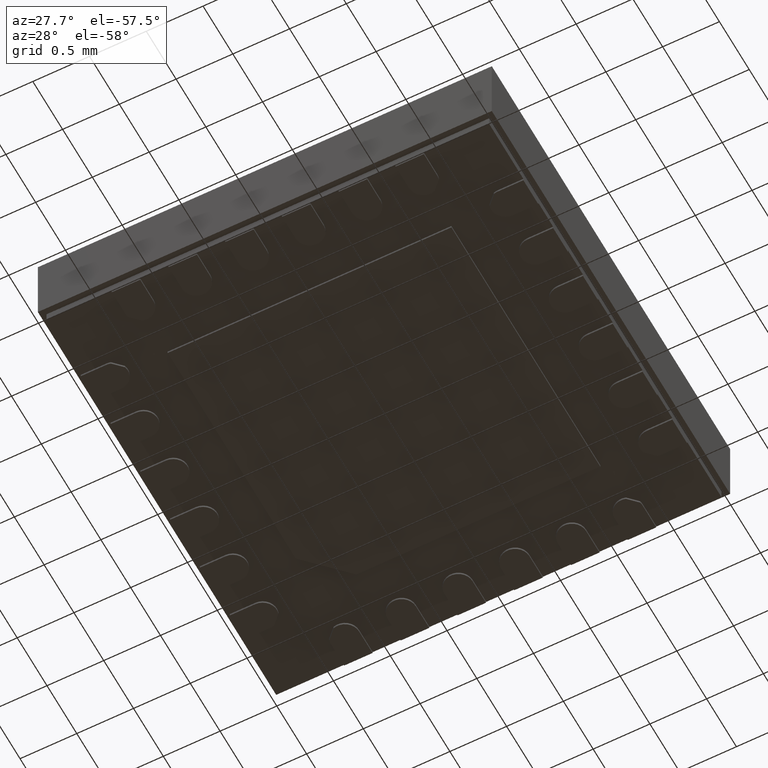
[diagram: clean part render]
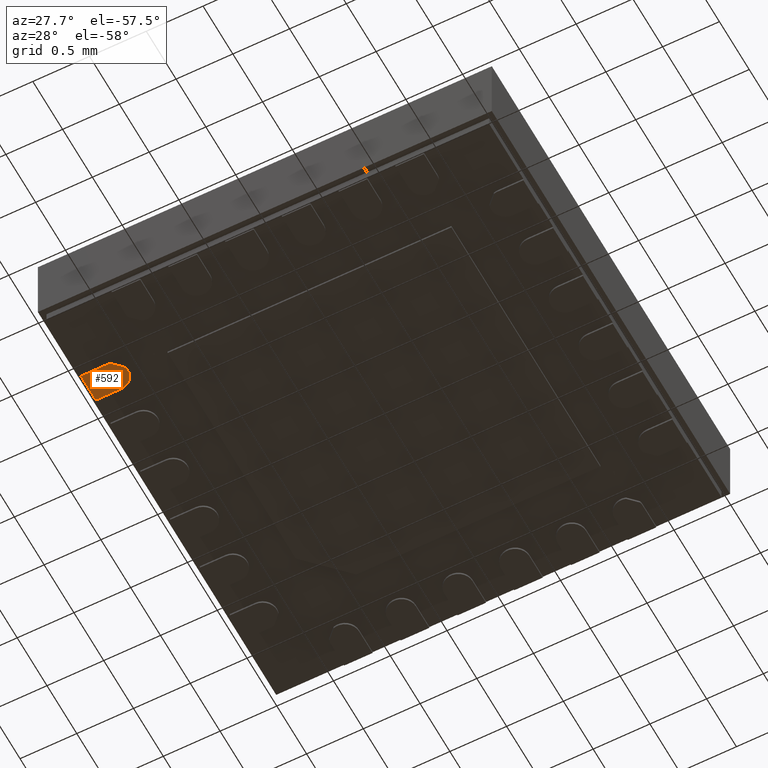
[diagram: same view with one face highlighted and labeled with its STEP entity id]
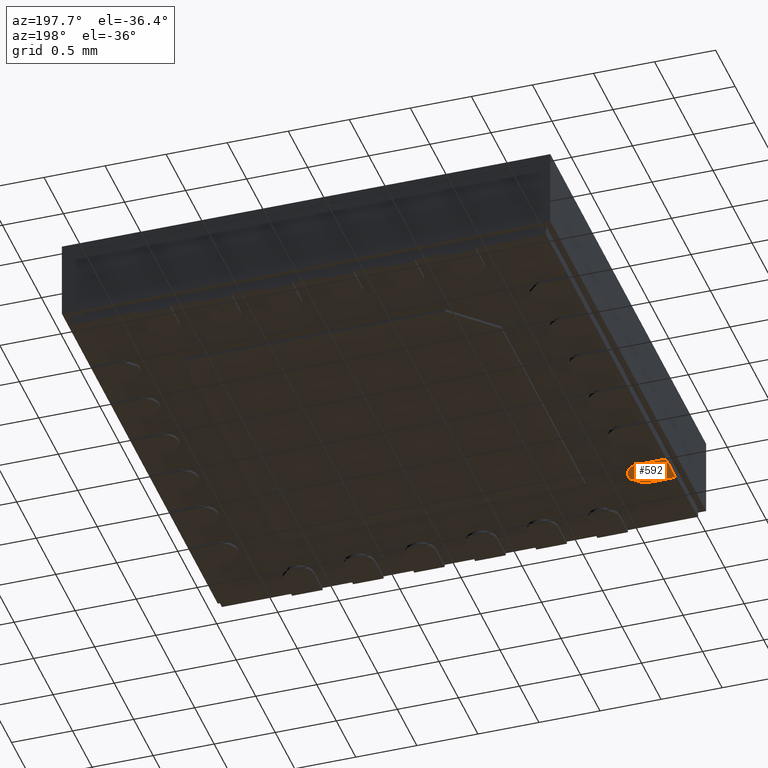
[diagram: same view with one face highlighted and labeled with its STEP entity id]
A machine part, auxiliary view. The second image highlights one B-rep face of the part: STEP entity #592.
A second angle (auxiliary view) of the same face is appended — the face is thin or edge-on in the first view.
In plain terms, the highlighted planar face has unit normal (0, 0, 1).
Its self-contained STEP definition (entity closure, byte-faithful):
#592=ADVANCED_FACE('',(#1517),#1518,.F.);
#1517=FACE_OUTER_BOUND('',#2829,.T.);
#1518=PLANE('',#2830);
#2829=EDGE_LOOP('',(#4284,#4285,#4286,#4287,#4288,#4289));
#2830=AXIS2_PLACEMENT_3D('',#4290,#4291,#4292);
#4284=ORIENTED_EDGE('',*,*,#7691,.T.);
#4285=ORIENTED_EDGE('',*,*,#7697,.F.);
#4286=ORIENTED_EDGE('',*,*,#7698,.F.);
#4287=ORIENTED_EDGE('',*,*,#7699,.F.);
#4288=ORIENTED_EDGE('',*,*,#7700,.F.);
#4289=ORIENTED_EDGE('',*,*,#7701,.F.);
#4290=CARTESIAN_POINT('',(-1.83268318423904,-1.23809068754715,0.0));
#4291=DIRECTION('',(0.0,0.0,1.0));
#4292=DIRECTION('',(1.0,0.0,0.0));
#7691=EDGE_CURVE('',#9193,#9197,#9199,.T.);
#7697=EDGE_CURVE('',#9207,#9197,#9208,.T.);
#7698=EDGE_CURVE('',#9209,#9207,#9210,.T.);
#7699=EDGE_CURVE('',#9211,#9209,#9212,.T.);
#7700=EDGE_CURVE('',#9213,#9211,#9214,.T.);
#7701=EDGE_CURVE('',#9193,#9213,#9215,.T.);
#9193=VERTEX_POINT('',#11397);
#9197=VERTEX_POINT('',#11403);
#9199=LINE('',#11406,#11407);
#9207=VERTEX_POINT('',#11418);
#9208=LINE('',#11419,#11420);
#9209=VERTEX_POINT('',#11421);
#9210=CIRCLE('',#11422,0.125000000000004);
#9211=VERTEX_POINT('',#11423);
#9212=LINE('',#11424,#11425);
#9213=VERTEX_POINT('',#11426);
#9214=CIRCLE('',#11427,0.12499999999998);
#9215=LINE('',#11428,#11429);
#11397=CARTESIAN_POINT('',(-1.96121662991138,-1.36378345472147,0.0));
#11403=CARTESIAN_POINT('',(-1.96121662991138,-1.11378345472141,0.0));
#11406=CARTESIAN_POINT('',(-1.96121662991138,-0.613437071133527,0.0));
#11407=VECTOR('',#14235,1.0);
#11418=CARTESIAN_POINT('',(-1.73621662990965,-1.11378345472141,0.0));
#11419=CARTESIAN_POINT('',(-1.73621662990965,-1.11378345472141,0.0));
#11420=VECTOR('',#14239,1.0);
#11421=CARTESIAN_POINT('',(-1.61700159879228,-1.27637037206891,0.0));
#11422=AXIS2_PLACEMENT_3D('',#14240,#14241,#14242);
#11423=CARTESIAN_POINT('',(-1.69862971256229,-1.35799848583887,0.0));
#11424=CARTESIAN_POINT('',(-1.69862971256229,-1.35799848583887,0.0));
#11425=VECTOR('',#14243,1.0);
#11426=CARTESIAN_POINT('',(-1.73621662990965,-1.36378345472147,0.0));
#11427=AXIS2_PLACEMENT_3D('',#14244,#14245,#14246);
#11428=CARTESIAN_POINT('',(-2.01121662991133,-1.36378345472147,0.0));
#11429=VECTOR('',#14247,1.0);
#14235=DIRECTION('',(0.0,1.0,0.0));
#14239=DIRECTION('',(-1.0,0.0,0.0));
#14240=CARTESIAN_POINT('',(-1.73621662990966,-1.23878345472147,0.0));
#14241=DIRECTION('',(0.0,0.0,1.0));
#14242=DIRECTION('',(0.953720248938995,-0.30069533877954,0.0));
#14243=DIRECTION('',(0.707106781186795,0.7071067811863,0.0));
#14244=CARTESIAN_POINT('',(-1.73621662990965,-1.23878345472149,0.0));
#14245=DIRECTION('',(0.0,0.0,1.0));
#14246=DIRECTION('',(-2.13162820728064E-14,-1.0,0.0));
#14247=DIRECTION('',(1.0,2.2773805633105E-15,0.0));